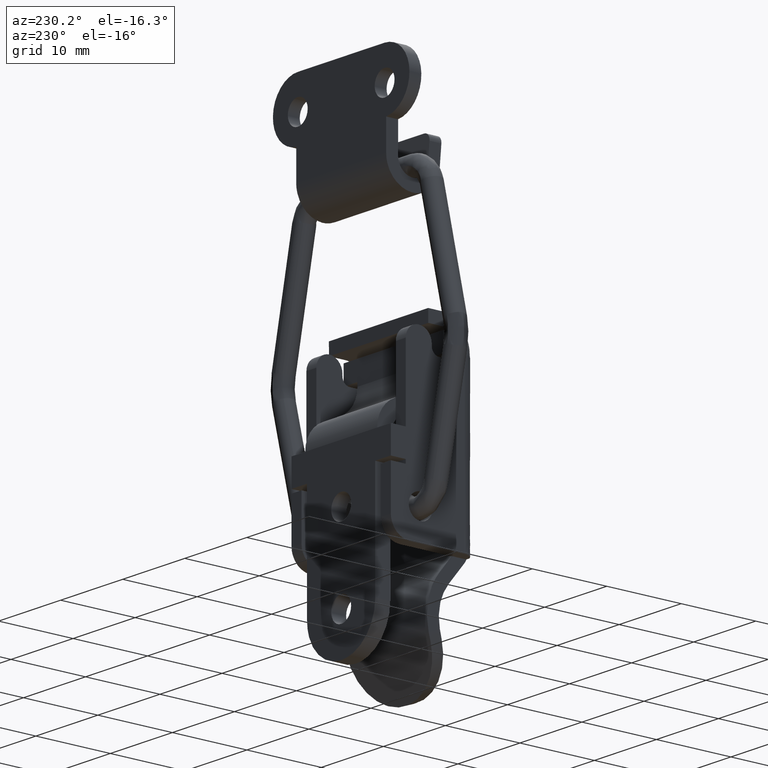
[diagram: clean part render]
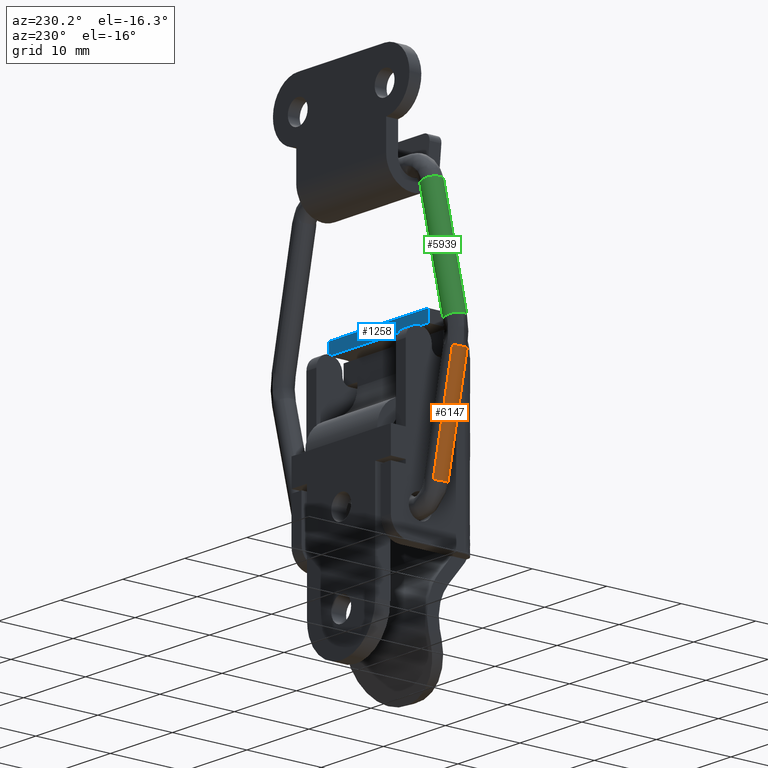
[diagram: same view with three faces highlighted in distinct colors, each labeled with its STEP entity id]
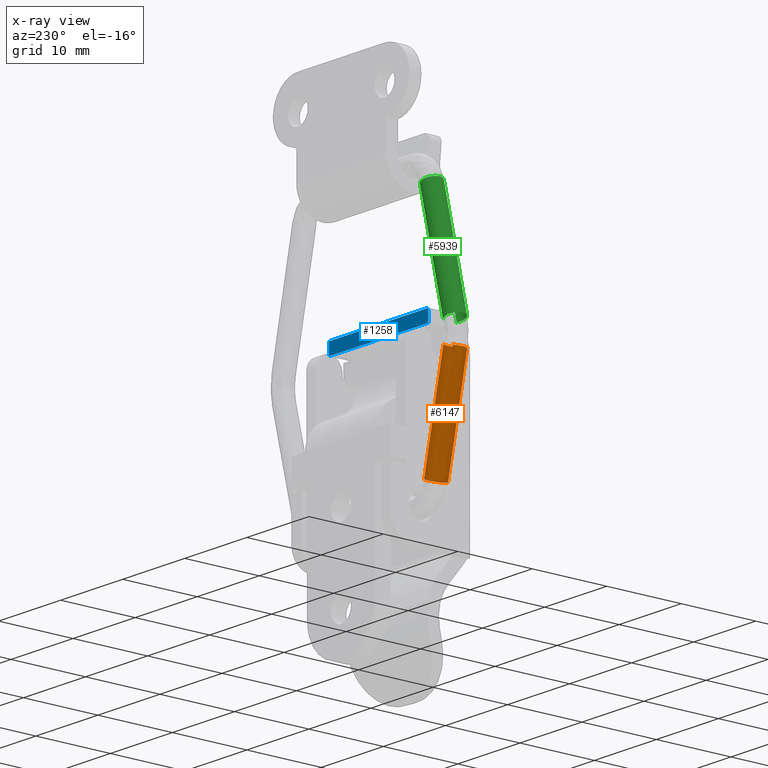
[diagram: x-ray of the same camera — body ghosted, the three highlighted faces saturated]
A machine part, auxiliary view with three faces highlighted in distinct colors.
The next image is the same camera in x-ray (body ghosted, the three faces saturated) — at least one of them is partly hidden behind the body in this view.
Their STEP definitions:

[orange] entity #6147 — the highlighted face is a freeform B-spline surface patch.
#6001=CARTESIAN_POINT('',(-11.169934516552159,1.017127849292040,1.628494142152470));
#6002=CARTESIAN_POINT('',(-11.226087418951062,0.973290735576579,1.615533658634598));
#6003=CARTESIAN_POINT('',(-11.276959495654459,0.923093358364691,1.603911685795607));
#6004=CARTESIAN_POINT('',(-12.155187351788182,0.056513147193785,1.403276269436653));
#6005=CARTESIAN_POINT('',(-11.314760774989971,-0.844234451807776,1.615023599724296));
#6006=CARTESIAN_POINT('',(-10.474334198191755,-1.744982050809337,1.826770930011939));
#6007=CARTESIAN_POINT('',(-9.596106342058029,-0.878401839638430,2.027406346370893));
#6008=CARTESIAN_POINT('',(-8.717878485924302,-0.011821628467524,2.228041762729847));
#6009=CARTESIAN_POINT('',(-9.558305062722516,0.888925970534037,2.016294432442205));
#6010=CARTESIAN_POINT('',(-14.625574515374558,1.181676038934174,16.043920667015822));
#6011=CARTESIAN_POINT('',(-14.681727417773450,1.137838925218713,16.030960183497950));
#6012=CARTESIAN_POINT('',(-14.732599494476849,1.087641548006825,16.019338210658962));
#6013=CARTESIAN_POINT('',(-15.610827350610585,0.221061336835919,15.818702794300016));
#6014=CARTESIAN_POINT('',(-14.770400773812360,-0.679686262165642,16.030450124587649));
#6015=CARTESIAN_POINT('',(-13.929974197014149,-1.580433861167203,16.242197454875303));
#6016=CARTESIAN_POINT('',(-13.051746340880420,-0.713853649996296,16.442832871234248));
#6017=CARTESIAN_POINT('',(-12.173518484746696,0.152726561174610,16.643468287593201));
#6018=CARTESIAN_POINT('',(-13.013945061544909,1.053474160176171,16.431720957305561));
#6026=(BOUNDED_SURFACE()B_SPLINE_SURFACE(2,1,((#6001,#6010),(#6002,#6011),(#6003,#6012),(#6004,#6013),(#6005,#6014),(#6006,#6015),(#6007,#6016),(#6008,#6017),(#6009,#6018)),.UNSPECIFIED.,.F.,.F.,.U.)B_SPLINE_SURFACE_WITH_KNOTS((3,2,2,2,3),(2,2),(1.445132620651305,1.570796326794897,3.141592653589793,4.712388980384690,6.283185307179586),(0.0,14.824744375600879),.UNSPECIFIED.)GEOMETRIC_REPRESENTATION_ITEM()RATIONAL_B_SPLINE_SURFACE(((0.956886118190660,0.956886118190660),(0.976568542494924,0.976568542494924),(1.0,1.0),(0.707106781186548,0.707106781186548),(1.0,1.0),(0.707106781186548,0.707106781186548),(1.0,1.0),(0.707106781186548,0.707106781186548),(1.0,1.0)))REPRESENTATION_ITEM('')SURFACE());
#6027=CARTESIAN_POINT('',(-11.252162926133050,1.021043546735833,1.971514351486359));
#6028=VERTEX_POINT('',#6027);
#6029=CARTESIAN_POINT('',(-11.734248054915570,0.008669164381781,1.867505754755583));
#6030=VERTEX_POINT('',#6029);
#6031=CARTESIAN_POINT('',(-11.252162926133050,1.021043546735833,1.971514351486359));
#6032=CARTESIAN_POINT('',(-11.393927077093000,0.910729622192905,1.938790108933030));
#6033=CARTESIAN_POINT('',(-11.573968353513591,0.691529337681799,1.898133051321906));
#6034=CARTESIAN_POINT('',(-11.711145020376589,0.325356771499934,1.869429069229449));
#6035=CARTESIAN_POINT('',(-11.735496389999950,0.118170227265629,1.865956581164301));
#6036=CARTESIAN_POINT('',(-11.734248054915570,0.008669164381781,1.867505754755583));
#6037=B_SPLINE_CURVE_WITH_KNOTS('',3,(#6031,#6032,#6033,#6034,#6035,#6036),.UNSPECIFIED.,.F.,.U.,(4,1,1,4),(0.000000018393013,0.547593672658256,0.839642968917410,1.168198954837582),.UNSPECIFIED.);
#6038=EDGE_CURVE('',#6028,#6030,#6037,.T.);
#6039=ORIENTED_EDGE('',*,*,#6038,.T.);
#6040=CARTESIAN_POINT('',(-10.944090385964600,-1.145808952582804,2.070098978310704));
#6041=VERTEX_POINT('',#6040);
#6042=CARTESIAN_POINT('',(-11.734248054915570,0.008669164381781,1.867505754755583));
#6043=CARTESIAN_POINT('',(-11.732973298949251,-0.108683278413244,1.869150883304297));
#6044=CARTESIAN_POINT('',(-11.694509776071600,-0.366359958598540,1.881312599019570));
#6045=CARTESIAN_POINT('',(-11.549996929334160,-0.664317858780008,1.919356066226893));
#6046=CARTESIAN_POINT('',(-11.304413847537109,-0.954012161533425,1.981533580813233));
#6047=CARTESIAN_POINT('',(-11.101050310437540,-1.086213443122780,2.031792562256275));
#6048=CARTESIAN_POINT('',(-10.944090385964600,-1.145808952582804,2.070098978310704));
#6049=B_SPLINE_CURVE_WITH_KNOTS('',3,(#6042,#6043,#6044,#6045,#6046,#6047,#6048),.UNSPECIFIED.,.F.,.U.,(4,1,1,1,4),(0.000000072629198,0.352127760683828,0.774665130080351,0.985954522626232,1.502416304048873),.UNSPECIFIED.);
#6050=EDGE_CURVE('',#6030,#6041,#6049,.T.);
#6051=ORIENTED_EDGE('',*,*,#6050,.T.);
#6052=CARTESIAN_POINT('',(-9.406224953063244,-0.474295138288410,2.431088152726791));
#6053=VERTEX_POINT('',#6052);
#6054=CARTESIAN_POINT('',(-10.944090385964600,-1.145808952582804,2.070098978310704));
#6055=CARTESIAN_POINT('',(-10.818436493165191,-1.193806544578100,2.100768381987023));
#6056=CARTESIAN_POINT('',(-10.541851373746990,-1.248215350728562,2.167691928878911));
#6057=CARTESIAN_POINT('',(-10.185805813515479,-1.191592972927434,2.252396198145290));
#6058=CARTESIAN_POINT('',(-9.904971946101918,-1.060680364618413,2.318222853419685));
#6059=CARTESIAN_POINT('',(-9.631155187742611,-0.857379109106115,2.381541083165992));
#6060=CARTESIAN_POINT('',(-9.475540669316402,-0.636942872506447,2.416328494351476));
#6061=CARTESIAN_POINT('',(-9.406224953063244,-0.474295138288410,2.431088152726791));
#6062=B_SPLINE_CURVE_WITH_KNOTS('',3,(#6054,#6055,#6056,#6057,#6058,#6059,#6060,#6061),.UNSPECIFIED.,.F.,.U.,(4,1,1,1,1,4),(0.000000108506812,0.413876539300998,0.857337629607263,1.093815331797103,1.359881529794594,1.892010089494055),.UNSPECIFIED.);
#6063=EDGE_CURVE('',#6041,#6053,#6062,.T.);
#6064=ORIENTED_EDGE('',*,*,#6063,.T.);
#6065=CARTESIAN_POINT('',(-9.303274177805152,0.043853321135841,2.449852802347826));
#6066=VERTEX_POINT('',#6065);
#6067=CARTESIAN_POINT('',(-9.406224953063244,-0.474295138288410,2.431088152726791));
#6068=CARTESIAN_POINT('',(-9.336503344013034,-0.311658174628687,2.445945234061865));
#6069=CARTESIAN_POINT('',(-9.301191869319368,-0.133680360992475,2.452378468475521));
#6070=CARTESIAN_POINT('',(-9.303274177805152,0.043853321135841,2.449852802347826));
#6071=B_SPLINE_CURVE_WITH_KNOTS('',3,(#6067,#6068,#6069,#6070),.UNSPECIFIED.,.F.,.U.,(4,4),(0.000000010082398,0.532646315318845),.UNSPECIFIED.);
#6072=EDGE_CURVE('',#6053,#6066,#6071,.T.);
#6073=ORIENTED_EDGE('',*,*,#6072,.T.);
#6074=CARTESIAN_POINT('',(-9.640533418012641,0.892841166007691,2.359314660373034));
#6075=VERTEX_POINT('',#6074);
#6076=CARTESIAN_POINT('',(-9.303274177805152,0.043853321135841,2.449852802347826));
#6077=CARTESIAN_POINT('',(-9.304241203178876,0.131964201042013,2.448615226941580));
#6078=CARTESIAN_POINT('',(-9.325520385361216,0.317690626825162,2.441394202989001));
#6079=CARTESIAN_POINT('',(-9.427925458302285,0.614797574096287,2.413454448605290));
#6080=CARTESIAN_POINT('',(-9.554910662939072,0.801146730363056,2.380886659653852));
#6081=CARTESIAN_POINT('',(-9.640533418012641,0.892841166007691,2.359314660373034));
#6082=B_SPLINE_CURVE_WITH_KNOTS('',3,(#6076,#6077,#6078,#6079,#6080,#6081),.UNSPECIFIED.,.F.,.U.,(4,1,1,4),(0.000000025177124,0.264380035888303,0.558124829393720,0.940012386487297),.UNSPECIFIED.);
#6083=EDGE_CURVE('',#6066,#6075,#6082,.T.);
#6084=ORIENTED_EDGE('',*,*,#6083,.T.);
#6085=CARTESIAN_POINT('',(-12.929661120799190,1.049460748623012,16.080125198011981));
#6086=VERTEX_POINT('',#6085);
#6087=CARTESIAN_POINT('',(-9.640533418012641,0.892841166007691,2.359314660373034));
#6088=CARTESIAN_POINT('',(-12.929661120799190,1.049460748623012,16.080125198011981));
#6089=QUASI_UNIFORM_CURVE('',1,(#6087,#6088),.UNSPECIFIED.,.F.,.U.);
#6090=EDGE_CURVE('',#6075,#6086,#6089,.T.);
#6091=ORIENTED_EDGE('',*,*,#6090,.T.);
#6092=CARTESIAN_POINT('',(-12.592402076702429,0.200472656903738,16.170663295799070));
#6093=VERTEX_POINT('',#6092);
#6094=CARTESIAN_POINT('',(-12.592402076702429,0.200472656903738,16.170663295799070));
#6095=CARTESIAN_POINT('',(-12.594075277171831,0.366930478953845,16.168362128243871));
#6096=CARTESIAN_POINT('',(-12.659557512882159,0.679143327786845,16.149101019903011));
#6097=CARTESIAN_POINT('',(-12.830823773979130,0.943688371248606,16.105025671237669));
#6098=CARTESIAN_POINT('',(-12.929661120799190,1.049460748623012,16.080125198011981));
#6099=B_SPLINE_CURVE_WITH_KNOTS('',3,(#6094,#6095,#6096,#6097,#6098),.UNSPECIFIED.,.F.,.U.,(4,1,4),(0.000000025190571,0.499375020459338,0.940012543849241),.UNSPECIFIED.);
#6100=EDGE_CURVE('',#6093,#6086,#6099,.T.);
#6101=ORIENTED_EDGE('',*,*,#6100,.F.);
#6102=CARTESIAN_POINT('',(-13.793665098551861,-1.066913503124480,15.897165564573511));
#6103=VERTEX_POINT('',#6102);
#6104=CARTESIAN_POINT('',(-13.793665098551861,-1.066913503124480,15.897165564573511));
#6105=CARTESIAN_POINT('',(-13.664408251115930,-1.065073455627217,15.928129778838420));
#6106=CARTESIAN_POINT('',(-13.446133041133130,-1.025553376395703,15.980003206765510));
#6107=CARTESIAN_POINT('',(-13.147619697899300,-0.879786237531465,16.049898393599701));
#6108=CARTESIAN_POINT('',(-12.883688754311310,-0.656772493508243,16.110621801001859));
#6109=CARTESIAN_POINT('',(-12.652297528835931,-0.291052789037002,16.161915896085890));
#6110=CARTESIAN_POINT('',(-12.590267793617009,0.026658821365426,16.173158960142310));
#6111=CARTESIAN_POINT('',(-12.592402076702429,0.200472656903738,16.170663295799070));
#6112=B_SPLINE_CURVE_WITH_KNOTS('',3,(#6104,#6105,#6106,#6107,#6108,#6109,#6110,#6111),.UNSPECIFIED.,.F.,.U.,(4,1,1,1,1,4),(0.000000107691370,0.398766695704425,0.674851173296656,1.012252939926083,1.441713358126027,1.963185310959141),.UNSPECIFIED.);
#6113=EDGE_CURVE('',#6103,#6093,#6112,.T.);
#6114=ORIENTED_EDGE('',*,*,#6113,.F.);
#6115=CARTESIAN_POINT('',(-15.023367557812151,0.164568536090742,15.588326479076519));
#6116=VERTEX_POINT('',#6115);
#6117=CARTESIAN_POINT('',(-15.023367557812151,0.164568536090742,15.588326479076519));
#6118=CARTESIAN_POINT('',(-15.021886292869830,0.031662166993207,15.590198655440050));
#6119=CARTESIAN_POINT('',(-14.985684544810409,-0.182460019524982,15.601321019838879));
#6120=CARTESIAN_POINT('',(-14.848501152633370,-0.490381821195894,15.637721218701490));
#6121=CARTESIAN_POINT('',(-14.679032743794970,-0.707840847474498,15.680828115340500));
#6122=CARTESIAN_POINT('',(-14.458782839605920,-0.884084609164709,15.735637799202950));
#6123=CARTESIAN_POINT('',(-14.181868177946180,-1.026912039005304,15.803649617959170));
#6124=CARTESIAN_POINT('',(-13.942814422873980,-1.069233861148418,15.861438244308371));
#6125=CARTESIAN_POINT('',(-13.793665098551861,-1.066913503124480,15.897165564573511));
#6126=B_SPLINE_CURVE_WITH_KNOTS('',3,(#6117,#6118,#6119,#6120,#6121,#6122,#6123,#6124,#6125),.UNSPECIFIED.,.F.,.U.,(4,1,1,1,1,1,4),(0.000000107691642,0.398766386673269,0.644170466451310,1.012252155463893,1.226975737049749,1.503063497299218,1.963183789513155),.UNSPECIFIED.);
#6127=EDGE_CURVE('',#6116,#6103,#6126,.T.);
#6128=ORIENTED_EDGE('',*,*,#6127,.F.);
#6129=CARTESIAN_POINT('',(-14.541224278333880,1.177573951640869,15.692341812396901));
#6130=VERTEX_POINT('',#6129);
#6131=CARTESIAN_POINT('',(-14.541224278333880,1.177573951640869,15.692341812396901));
#6132=CARTESIAN_POINT('',(-14.654576297982070,1.089166415301431,15.666178419146251));
#6133=CARTESIAN_POINT('',(-14.817898576866360,0.907322514401287,15.629102796437630));
#6134=CARTESIAN_POINT('',(-14.985783416161830,0.554643808932799,15.592883478014640));
#6135=CARTESIAN_POINT('',(-15.025105142866090,0.310651516044981,15.586242450677670));
#6136=CARTESIAN_POINT('',(-15.023367557812151,0.164568536090742,15.588326479076519));
#6137=B_SPLINE_CURVE_WITH_KNOTS('',3,(#6131,#6132,#6133,#6134,#6135,#6136),.UNSPECIFIED.,.F.,.U.,(4,1,1,4),(9.420751E-009,0.438302271692087,0.730502647915371,1.168804895616948),.UNSPECIFIED.);
#6138=EDGE_CURVE('',#6130,#6116,#6137,.T.);
#6139=ORIENTED_EDGE('',*,*,#6138,.F.);
#6140=CARTESIAN_POINT('',(-11.252162926133050,1.021043546735833,1.971514351486359));
#6141=CARTESIAN_POINT('',(-14.541224278333880,1.177573951640869,15.692341812396901));
#6142=QUASI_UNIFORM_CURVE('',1,(#6140,#6141),.UNSPECIFIED.,.F.,.U.);
#6143=EDGE_CURVE('',#6028,#6130,#6142,.T.);
#6144=ORIENTED_EDGE('',*,*,#6143,.F.);
#6145=EDGE_LOOP('',(#6039,#6051,#6064,#6073,#6084,#6091,#6101,#6114,#6128,#6139,#6144));
#6146=FACE_OUTER_BOUND('',#6145,.T.);
#6147=ADVANCED_FACE('',(#6146),#6026,.T.);

[blue] entity #1258 — the highlighted face is a freeform B-spline surface patch.
#1208=CARTESIAN_POINT('',(7.999999999995459,-1.015422126652778,21.500000000000000));
#1209=VERTEX_POINT('',#1208);
#1215=CARTESIAN_POINT('',(-8.000000000004560,-1.015422126652778,21.500000000000000));
#1216=VERTEX_POINT('',#1215);
#1217=CARTESIAN_POINT('',(-8.000000000004560,-1.015422126652778,21.500000000000000));
#1218=CARTESIAN_POINT('',(7.999999999995459,-1.015422126652778,21.500000000000000));
#1219=QUASI_UNIFORM_CURVE('',1,(#1217,#1218),.UNSPECIFIED.,.F.,.U.);
#1220=EDGE_CURVE('',#1216,#1209,#1219,.T.);
#1231=CARTESIAN_POINT('',(-8.799199968993458,-1.033756880993076,19.820079597570420));
#1232=CARTESIAN_POINT('',(-8.799199968993458,-1.014549874224349,21.579920059106829));
#1233=CARTESIAN_POINT('',(8.799200398137799,-1.033756880993076,19.820079597570420));
#1234=CARTESIAN_POINT('',(8.799200398137799,-1.014549874224349,21.579920059106829));
#1235=B_SPLINE_SURFACE_WITH_KNOTS('',1,1,((#1231,#1233),(#1232,#1234)),.UNSPECIFIED.,.F.,.F.,.U.,(2,2),(2,2),(0.041708123734593,0.958291697451472),(0.0,17.598400367131259),.UNSPECIFIED.);
#1236=CARTESIAN_POINT('',(7.999999999995459,-1.032884624817682,19.899999999999999));
#1237=VERTEX_POINT('',#1236);
#1238=CARTESIAN_POINT('',(7.999999999995459,-1.032884624817682,19.899999999999999));
#1239=CARTESIAN_POINT('',(7.999999999995459,-1.015422126652778,21.500000000000000));
#1240=QUASI_UNIFORM_CURVE('',1,(#1238,#1239),.UNSPECIFIED.,.F.,.U.);
#1241=EDGE_CURVE('',#1237,#1209,#1240,.T.);
#1242=ORIENTED_EDGE('',*,*,#1241,.F.);
#1243=CARTESIAN_POINT('',(-8.000000000004560,-1.032884624817682,19.899999999999999));
#1244=VERTEX_POINT('',#1243);
#1245=CARTESIAN_POINT('',(-8.000000000004560,-1.032884624817682,19.899999999999999));
#1246=CARTESIAN_POINT('',(7.999999999995459,-1.032884624817682,19.899999999999999));
#1247=QUASI_UNIFORM_CURVE('',1,(#1245,#1246),.UNSPECIFIED.,.F.,.U.);
#1248=EDGE_CURVE('',#1244,#1237,#1247,.T.);
#1249=ORIENTED_EDGE('',*,*,#1248,.F.);
#1250=CARTESIAN_POINT('',(-8.000000000004560,-1.032884624817682,19.899999999999999));
#1251=CARTESIAN_POINT('',(-8.000000000004560,-1.015422126652778,21.500000000000000));
#1252=QUASI_UNIFORM_CURVE('',1,(#1250,#1251),.UNSPECIFIED.,.F.,.U.);
#1253=EDGE_CURVE('',#1244,#1216,#1252,.T.);
#1254=ORIENTED_EDGE('',*,*,#1253,.T.);
#1255=ORIENTED_EDGE('',*,*,#1220,.T.);
#1256=EDGE_LOOP('',(#1242,#1249,#1254,#1255));
#1257=FACE_OUTER_BOUND('',#1256,.T.);
#1258=ADVANCED_FACE('',(#1257),#1235,.T.);

[green] entity #5939 — the highlighted face is a freeform B-spline surface patch.
#5803=CARTESIAN_POINT('',(-13.086197411631444,1.131850994187547,18.359358681448942));
#5804=CARTESIAN_POINT('',(-13.933414343768902,1.932542386289257,18.545260826111694));
#5805=CARTESIAN_POINT('',(-14.758760167440069,1.112481597057578,18.744628366573171));
#5806=CARTESIAN_POINT('',(-15.632739960173058,0.244098262404990,18.955743752018726));
#5807=CARTESIAN_POINT('',(-14.784196289935471,-0.654910673737403,18.770658440835959));
#5808=CARTESIAN_POINT('',(-13.935652619697874,-1.553919609879795,18.585573129653195));
#5809=CARTESIAN_POINT('',(-13.061672826964880,-0.685536275227207,18.374457744207639));
#5810=CARTESIAN_POINT('',(-9.365844133739097,1.316317142286414,34.519720032291104));
#5811=CARTESIAN_POINT('',(-10.213061065876557,2.117008534388125,34.705622176953860));
#5812=CARTESIAN_POINT('',(-11.038406889547730,1.296947745156446,34.904989717415340));
#5813=CARTESIAN_POINT('',(-11.912386682280722,0.428564410503857,35.116105102860899));
#5814=CARTESIAN_POINT('',(-11.063843012043129,-0.470444525638536,34.931019791678132));
#5815=CARTESIAN_POINT('',(-10.215299341805533,-1.369453461780928,34.745934480495357));
#5816=CARTESIAN_POINT('',(-9.341319549072539,-0.501070127128339,34.534819095049812));
#5824=(BOUNDED_SURFACE()B_SPLINE_SURFACE(2,1,((#5803,#5810),(#5804,#5811),(#5805,#5812),(#5806,#5813),(#5807,#5814),(#5808,#5815),(#5809,#5816)),.UNSPECIFIED.,.F.,.F.,.U.)B_SPLINE_SURFACE_WITH_KNOTS((3,2,2,3),(2,2),(1.633628179866693,3.141592653589793,4.712388980384690,6.283185307179586),(0.0,16.584098867949141),.UNSPECIFIED.)GEOMETRIC_REPRESENTATION_ITEM()RATIONAL_B_SPLINE_SURFACE(((0.977505800795127,0.977505800795127),(0.718822509939086,0.718822509939086),(1.0,1.0),(0.707106781186548,0.707106781186548),(1.0,1.0),(0.707106781186548,0.707106781186548),(1.0,1.0)))REPRESENTATION_ITEM('')SURFACE());
#5825=CARTESIAN_POINT('',(-9.456584403742589,1.311817916970152,34.125564865199529));
#5826=VERTEX_POINT('',#5825);
#5827=CARTESIAN_POINT('',(-10.022349030168860,1.614266650216350,34.252359847402332));
#5828=VERTEX_POINT('',#5827);
#5829=CARTESIAN_POINT('',(-9.456584403742589,1.311817916970152,34.125564865199529));
#5830=CARTESIAN_POINT('',(-9.540646511558771,1.391325411826026,34.144009644409820));
#5831=CARTESIAN_POINT('',(-9.719547844378754,1.517910301100072,34.183750434803329));
#5832=CARTESIAN_POINT('',(-9.923883974533764,1.592112691308422,34.229944622321277));
#5833=CARTESIAN_POINT('',(-10.022349030168860,1.614266650216350,34.252359847402332));
#5834=B_SPLINE_CURVE_WITH_KNOTS('',3,(#5829,#5830,#5831,#5832,#5833),.UNSPECIFIED.,.F.,.U.,(4,1,4),(0.000000012287154,0.351492574553038,0.661647676761744),.UNSPECIFIED.);
#5835=EDGE_CURVE('',#5826,#5828,#5834,.T.);
#5836=ORIENTED_EDGE('',*,*,#5835,.F.);
#5837=CARTESIAN_POINT('',(-12.997670258263780,1.136240424917596,18.743900294405350));
#5838=VERTEX_POINT('',#5837);
#5839=CARTESIAN_POINT('',(-12.997670258263780,1.136240424917596,18.743900294405350));
#5840=CARTESIAN_POINT('',(-9.456584403742589,1.311817916970152,34.125564865199529));
#5841=QUASI_UNIFORM_CURVE('',1,(#5839,#5840),.UNSPECIFIED.,.F.,.U.);
#5842=EDGE_CURVE('',#5838,#5826,#5841,.T.);
#5843=ORIENTED_EDGE('',*,*,#5842,.F.);
#5844=CARTESIAN_POINT('',(-13.977534768272070,1.457918677618398,18.965807670871630));
#5845=VERTEX_POINT('',#5844);
#5846=CARTESIAN_POINT('',(-12.997670258263780,1.136240424917596,18.743900294405350));
#5847=CARTESIAN_POINT('',(-13.103454770124671,1.236365917074393,18.767110542197251));
#5848=CARTESIAN_POINT('',(-13.302571320460521,1.366461241251676,18.811465102796191));
#5849=CARTESIAN_POINT('',(-13.644580563468541,1.468289365350930,18.889038328917430));
#5850=CARTESIAN_POINT('',(-13.856929431054819,1.473623232073313,18.937863282130660));
#5851=CARTESIAN_POINT('',(-13.977534768272070,1.457918677618398,18.965807670871630));
#5852=B_SPLINE_CURVE_WITH_KNOTS('',3,(#5846,#5847,#5848,#5849,#5850,#5851),.UNSPECIFIED.,.F.,.U.,(4,1,1,4),(0.000000022694441,0.442440163893461,0.714697368101921,1.089069968678037),.UNSPECIFIED.);
#5853=EDGE_CURVE('',#5838,#5845,#5852,.T.);
#5854=ORIENTED_EDGE('',*,*,#5853,.T.);
#5855=CARTESIAN_POINT('',(-15.039733984886359,0.205355980638202,19.224639244346619));
#5856=VERTEX_POINT('',#5855);
#5857=CARTESIAN_POINT('',(-13.977534768272070,1.457918677618398,18.965807670871630));
#5858=CARTESIAN_POINT('',(-14.087368698961370,1.443587967188271,18.991256641117189));
#5859=CARTESIAN_POINT('',(-14.303075793645281,1.383895966261399,19.041596960429789));
#5860=CARTESIAN_POINT('',(-14.623140306683810,1.188923121644659,19.117506089185959));
#5861=CARTESIAN_POINT('',(-14.869158086854480,0.898784224310559,19.177454863805981));
#5862=CARTESIAN_POINT('',(-15.013190119705550,0.546527703856116,19.214634072651450));
#5863=CARTESIAN_POINT('',(-15.041046829034981,0.318994617003162,19.223644326145209));
#5864=CARTESIAN_POINT('',(-15.039733984886359,0.205355980638202,19.224639244346619));
#5865=B_SPLINE_CURVE_WITH_KNOTS('',3,(#5857,#5858,#5859,#5860,#5861,#5862,#5863,#5864),.UNSPECIFIED.,.F.,.U.,(4,1,1,1,1,4),(0.000000105293408,0.340951327361903,0.681906657263188,1.136504355194119,1.477459685095201,1.818410907163516),.UNSPECIFIED.);
#5866=EDGE_CURVE('',#5845,#5856,#5865,.T.);
#5867=ORIENTED_EDGE('',*,*,#5866,.T.);
#5868=CARTESIAN_POINT('',(-13.807086399462341,-1.032005026832428,18.954989750041161));
#5869=VERTEX_POINT('',#5868);
#5870=CARTESIAN_POINT('',(-15.039733984886359,0.205355980638202,19.224639244346619));
#5871=CARTESIAN_POINT('',(-15.037812081634391,0.031544004594809,19.226180810535091));
#5872=CARTESIAN_POINT('',(-14.979453276815700,-0.233461978640310,19.215770725376949));
#5873=CARTESIAN_POINT('',(-14.809288617194429,-0.524966404580690,19.179923757724598));
#5874=CARTESIAN_POINT('',(-14.634711197999669,-0.723084471323214,19.141994927805701));
#5875=CARTESIAN_POINT('',(-14.431354840988680,-0.874464031568910,19.096907255000250));
#5876=CARTESIAN_POINT('',(-14.146135538742600,-1.000705720841646,19.032686584103939));
#5877=CARTESIAN_POINT('',(-13.936594551637601,-1.033332545797639,18.984819588019619));
#5878=CARTESIAN_POINT('',(-13.807086399462341,-1.032005026832428,18.954989750041161));
#5879=B_SPLINE_CURVE_WITH_KNOTS('',3,(#5870,#5871,#5872,#5873,#5874,#5875,#5876,#5877,#5878),.UNSPECIFIED.,.F.,.U.,(4,1,1,1,1,1,4),(0.000000107596153,0.521375528624060,0.797400784740867,1.012065563013149,1.318770285320170,1.564129125956369,1.962821898983493),.UNSPECIFIED.);
#5880=EDGE_CURVE('',#5856,#5869,#5879,.T.);
#5881=ORIENTED_EDGE('',*,*,#5880,.T.);
#5882=CARTESIAN_POINT('',(-12.973145679045521,-0.681146834201106,18.758999358283852));
#5883=VERTEX_POINT('',#5882);
#5884=CARTESIAN_POINT('',(-13.807086399462341,-1.032005026832428,18.954989750041161));
#5885=CARTESIAN_POINT('',(-13.643416449834980,-1.030627483731402,18.917294791962430));
#5886=CARTESIAN_POINT('',(-13.336337012614599,-0.962692464895491,18.845825121389709));
#5887=CARTESIAN_POINT('',(-13.076677884909460,-0.784182332428145,18.784010119748519));
#5888=CARTESIAN_POINT('',(-12.973145679045521,-0.681146834201106,18.758999358283852));
#5889=B_SPLINE_CURVE_WITH_KNOTS('',3,(#5884,#5885,#5886,#5887,#5888),.UNSPECIFIED.,.F.,.U.,(4,1,4),(0.000000026316711,0.503792188830398,0.948327543428059),.UNSPECIFIED.);
#5890=EDGE_CURVE('',#5869,#5883,#5889,.T.);
#5891=ORIENTED_EDGE('',*,*,#5890,.T.);
#5892=CARTESIAN_POINT('',(-9.432059810621693,-0.505569239487922,34.140663924704690));
#5893=VERTEX_POINT('',#5892);
#5894=CARTESIAN_POINT('',(-12.973145679045521,-0.681146834201106,18.758999358283852));
#5895=CARTESIAN_POINT('',(-9.432059810621693,-0.505569239487922,34.140663924704690));
#5896=QUASI_UNIFORM_CURVE('',1,(#5894,#5895),.UNSPECIFIED.,.F.,.U.);
#5897=EDGE_CURVE('',#5883,#5893,#5896,.T.);
#5898=ORIENTED_EDGE('',*,*,#5897,.T.);
#5899=CARTESIAN_POINT('',(-10.538858057753410,-0.827387380539146,34.399138655267237));
#5900=VERTEX_POINT('',#5899);
#5901=CARTESIAN_POINT('',(-10.538858057753410,-0.827387380539146,34.399138655267237));
#5902=CARTESIAN_POINT('',(-10.447321734900379,-0.848015482782779,34.378301109276769));
#5903=CARTESIAN_POINT('',(-10.240871928658510,-0.869456780416506,34.331018068717093));
#5904=CARTESIAN_POINT('',(-9.948136531676346,-0.823141279973981,34.263097388377368));
#5905=CARTESIAN_POINT('',(-9.664850733224904,-0.700447428830077,34.196480306672683));
#5906=CARTESIAN_POINT('',(-9.508206078984408,-0.581270508732756,34.159058027069086));
#5907=CARTESIAN_POINT('',(-9.432059810621693,-0.505569239487922,34.140663924704690));
#5908=B_SPLINE_CURVE_WITH_KNOTS('',3,(#5901,#5902,#5903,#5904,#5905,#5906,#5907),.UNSPECIFIED.,.F.,.U.,(4,1,1,1,4),(0.000000038964770,0.288360253671757,0.634378240759514,0.903529414689346,1.230338162520052),.UNSPECIFIED.);
#5909=EDGE_CURVE('',#5900,#5893,#5908,.T.);
#5910=ORIENTED_EDGE('',*,*,#5909,.F.);
#5911=CARTESIAN_POINT('',(-11.498665003761371,0.382373534277133,34.606291261739699));
#5912=VERTEX_POINT('',#5911);
#5913=CARTESIAN_POINT('',(-11.498665003761371,0.382373534277133,34.606291261739699));
#5914=CARTESIAN_POINT('',(-11.497202868513741,0.242188308462650,34.607554833049853));
#5915=CARTESIAN_POINT('',(-11.458359328154881,0.023579402955519,34.601107839232313));
#5916=CARTESIAN_POINT('',(-11.307831266370540,-0.302912103287197,34.570180873819503));
#5917=CARTESIAN_POINT('',(-11.100162024014930,-0.553783354557077,34.525235982056707));
#5918=CARTESIAN_POINT('',(-10.817708330845431,-0.740621058029517,34.462343682322057));
#5919=CARTESIAN_POINT('',(-10.630645532791011,-0.806731223961177,34.420033699879760));
#5920=CARTESIAN_POINT('',(-10.538858057753410,-0.827387380539146,34.399138655267237));
#5921=B_SPLINE_CURVE_WITH_KNOTS('',3,(#5913,#5914,#5915,#5916,#5917,#5918,#5919,#5920),.UNSPECIFIED.,.F.,.U.,(4,1,1,1,1,4),(0.000000084259162,0.420556444096934,0.657124468011680,1.077664248530047,1.393093031488851,1.682223225095808),.UNSPECIFIED.);
#5922=EDGE_CURVE('',#5912,#5900,#5921,.T.);
#5923=ORIENTED_EDGE('',*,*,#5922,.F.);
#5924=CARTESIAN_POINT('',(-10.022349030168860,1.614266650216350,34.252359847402332));
#5925=CARTESIAN_POINT('',(-10.111418281025600,1.634344066118546,34.272635722963066));
#5926=CARTESIAN_POINT('',(-10.305335775540280,1.655077286058877,34.317041723142701));
#5927=CARTESIAN_POINT('',(-10.623908764820330,1.610867974677973,34.390886556204052));
#5928=CARTESIAN_POINT('',(-10.918983203052511,1.477257293495687,34.460342169029119));
#5929=CARTESIAN_POINT('',(-11.185517865527860,1.254817078856156,34.524241470059280));
#5930=CARTESIAN_POINT('',(-11.359689122353171,1.004953162738415,34.567190388421899));
#5931=CARTESIAN_POINT('',(-11.474793376382440,0.698235508545211,34.597190182515888));
#5932=CARTESIAN_POINT('',(-11.500005816878950,0.499278375934218,34.605265499566407));
#5933=CARTESIAN_POINT('',(-11.498665003761371,0.382373534277133,34.606291261739699));
#5934=B_SPLINE_CURVE_WITH_KNOTS('',3,(#5924,#5925,#5926,#5927,#5928,#5929,#5930,#5931,#5932,#5933),.UNSPECIFIED.,.F.,.U.,(4,1,1,1,1,1,1,4),(0.000000059941391,0.280593249794035,0.596295091423373,0.982143976646256,1.262727275199217,1.648577583486317,1.894123047141929,2.244872198511861),.UNSPECIFIED.);
#5935=EDGE_CURVE('',#5828,#5912,#5934,.T.);
#5936=ORIENTED_EDGE('',*,*,#5935,.F.);
#5937=EDGE_LOOP('',(#5836,#5843,#5854,#5867,#5881,#5891,#5898,#5910,#5923,#5936));
#5938=FACE_OUTER_BOUND('',#5937,.T.);
#5939=ADVANCED_FACE('',(#5938),#5824,.T.);